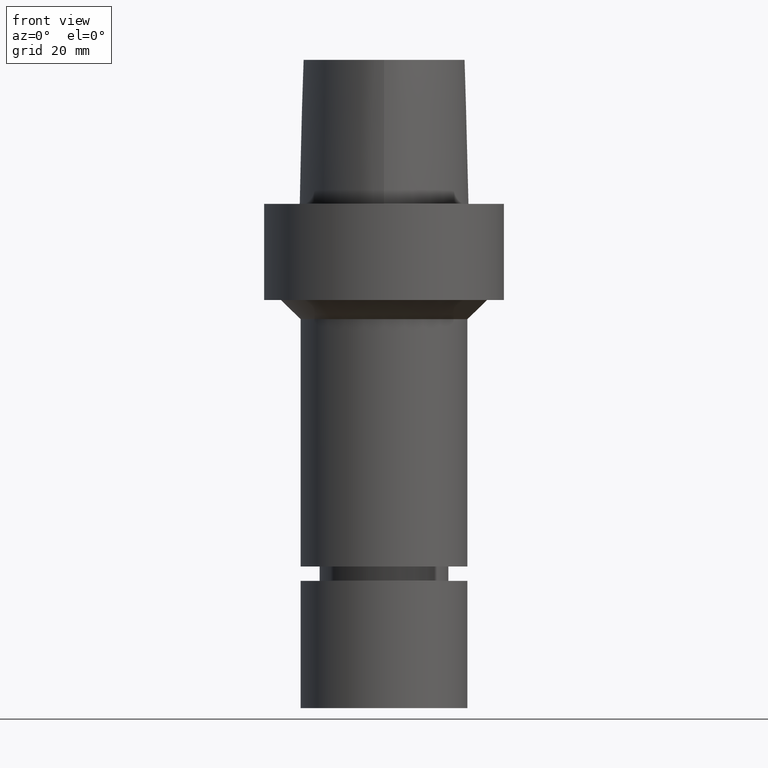
[diagram: clean part render]
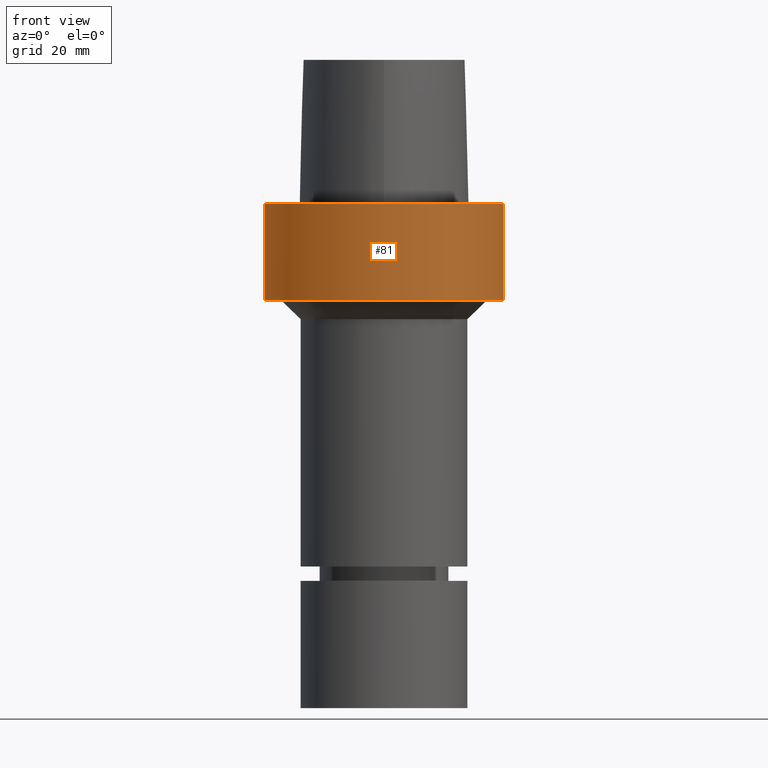
[diagram: same view with one face highlighted and labeled with its STEP entity id]
A machine part, front view. The second image highlights one B-rep face of the part: STEP entity #81.
In plain terms, the highlighted cylindrical surface (bore or boss wall) has radius 25 mm, axis along (0, 0, -1).
Its self-contained STEP definition (entity closure, byte-faithful):
#75=EDGE_CURVE('Unnamed[1]',#183,#183,#184,.T.);
#81=ADVANCED_FACE('Unnamed[1]',(#191,#192),#193,.T.);
#83=EDGE_CURVE('Unnamed[1]',#195,#195,#196,.T.);
#183=VERTEX_POINT('',#467);
#184=CIRCLE('',#468,25.0);
#191=FACE_BOUND('',#860,.T.);
#192=FACE_BOUND('',#861,.T.);
#193=CYLINDRICAL_SURFACE('',#862,25.0);
#195=VERTEX_POINT('',#865);
#196=CIRCLE('',#866,25.0);
#467=CARTESIAN_POINT('',(1.22464679914735E-015,25.0,-20.0));
#468=AXIS2_PLACEMENT_3D('',#999,#1000,#1001);
#860=EDGE_LOOP('',(#1008));
#861=EDGE_LOOP('',(#1009));
#862=AXIS2_PLACEMENT_3D('',#1010,#1011,#1012);
#865=CARTESIAN_POINT('',(-3.08148791101958E-031,25.0,3.06161699786838E-015));
#866=AXIS2_PLACEMENT_3D('',#1013,#1014,#1015);
#999=CARTESIAN_POINT('',(1.22464679914735E-015,2.44929359829471E-015,-20.0));
#1000=DIRECTION('',(6.12323399573677E-017,1.22464679914735E-016,-1.0));
#1001=DIRECTION('',(-1.23259516440783E-032,1.0,1.22464679914735E-016));
#1008=ORIENTED_EDGE('',*,*,#75,.F.);
#1009=ORIENTED_EDGE('',*,*,#83,.T.);
#1010=CARTESIAN_POINT('',(6.12323399573677E-016,1.22464679914735E-015,-10.0));
#1011=DIRECTION('',(6.12323399573677E-017,1.22464679914735E-016,-1.0));
#1012=DIRECTION('',(-1.23259516440783E-032,1.0,1.22464679914735E-016));
#1013=CARTESIAN_POINT('',(0.0,0.0,0.0));
#1014=DIRECTION('',(6.12323399573677E-017,1.22464679914735E-016,-1.0));
#1015=DIRECTION('',(-1.23259516440783E-032,1.0,1.22464679914735E-016));